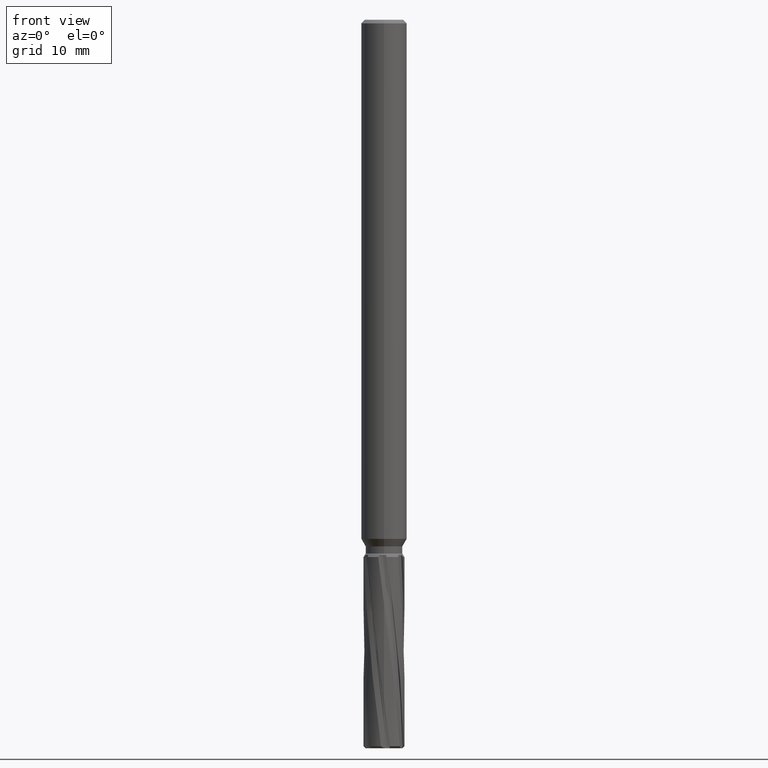
[diagram: clean part render]
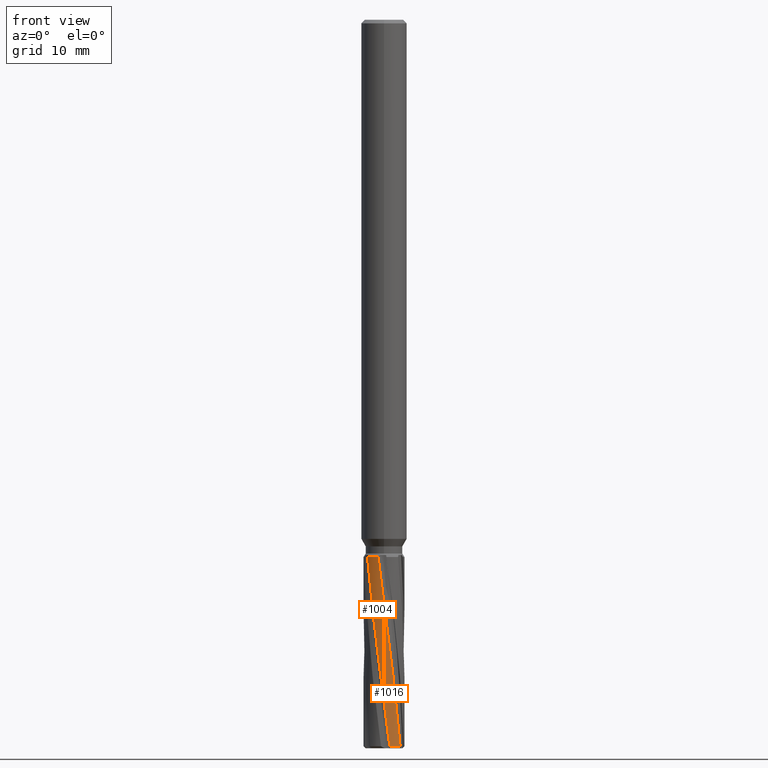
[diagram: same view with one multi-face feature highlighted, each face labeled with its STEP entity id]
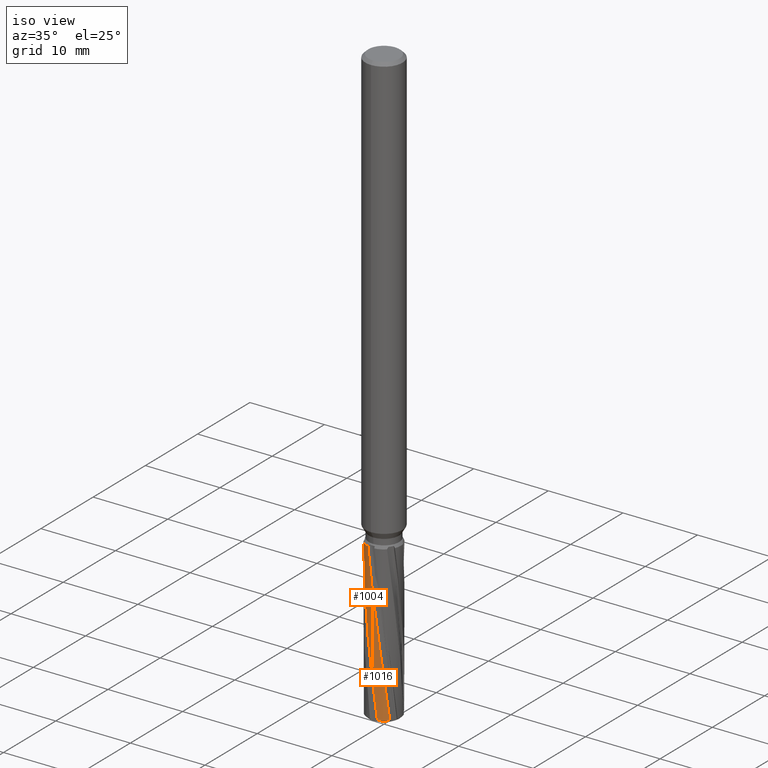
[diagram: same view with one multi-face feature highlighted, each face labeled with its STEP entity id]
A machine part, front view. The highlighted faces form ONE feature: a constant-radius fillet chain: 2 tangent blend faces with common blend radius 2.25 mm. The faces share edges in the B-rep.
A second angle (iso view) of the same feature is appended — it is thin or edge-on in the first view.
Their STEP definitions:
[1] entity #1016 (Cylinder):
#756=EDGE_CURVE('',#1688,#1414,#2015,.T.);
#806=EDGE_CURVE('',#1688,#1286,#2068,.T.);
#1016=ADVANCED_FACE('',(#2297),#2298,.T.);
#1176=VERTEX_POINT('',#2474);
#1212=EDGE_CURVE('',#1176,#1286,#2512,.T.);
#1286=VERTEX_POINT('',#2590);
#1414=VERTEX_POINT('',#2733);
#1688=VERTEX_POINT('',#3031);
#1702=EDGE_CURVE('',#1176,#1414,#3045,.T.);
#2015=LINE('',#4033,#4034);
#2068=B_SPLINE_CURVE_WITH_KNOTS('',3,(#4379,#4380,#4381,#4382,#4383,#4384,#4385,#4386,#4387,#4388,#4389,#4390,#4391,#4392,#4393,#4394,#4395,#4396),.UNSPECIFIED.,.F.,.F.,(4,2,2,2,2,2,2,2,4),(0.0,2.24763169912315,3.80169949927109,7.09311999092738,9.53967199945515,10.439282868356,13.5772195643846,15.133595222654,16.6910960603175),.UNSPECIFIED.);
#2297=FACE_OUTER_BOUND('',#5605,.T.);
#2298=CYLINDRICAL_SURFACE('',#5606,2.25);
#2474=CARTESIAN_POINT('',(1.76215847172596,-1.39903449583076,-79.775));
#2512=CIRCLE('',#7250,2.25);
#2590=CARTESIAN_POINT('',(0.63356610494079,-2.1589566903183,-79.775));
#2733=CARTESIAN_POINT('',(-1.776481943039E-011,-2.25,-64.1253749104153));
#3031=CARTESIAN_POINT('',(1.49676559848736E-015,-2.25,-74.8179904956601));
#3045=B_SPLINE_CURVE_WITH_KNOTS('',3,(#10328,#10329,#10330,#10331,#10332,#10333,#10334,#10335,#10336,#10337,#10338,#10339,#10340,#10341),.UNSPECIFIED.,.F.,.F.,(4,2,2,2,2,2,4),(0.0,2.61756637331922,11.8450244365393,16.4488721192636,17.4190607651211,20.8717720326524,21.5184970073441),.UNSPECIFIED.);
#4033=CARTESIAN_POINT('',(2.73484786643087E-016,-2.25,-69.3875));
#4034=VECTOR('',#12084,1.0);
#4379=CARTESIAN_POINT('',(-1.80198626379995,-1.34734758138956,-59.0));
#4380=CARTESIAN_POINT('',(-1.7223864139564,-1.45380699691074,-59.7373240329182));
#4381=CARTESIAN_POINT('',(-1.64320288411039,-1.54011485096043,-60.4781928115557));
#4382=CARTESIAN_POINT('',(-1.52491519418682,-1.65581052920191,-61.7520497884787));
#4383=CARTESIAN_POINT('',(-1.48549662201164,-1.69194601375596,-62.2296805492722));
#4384=CARTESIAN_POINT('',(-1.28497578799503,-1.85531815318653,-64.3341070576125));
#4385=CARTESIAN_POINT('',(-1.13327720065982,-1.95259115653192,-65.7080419528797));
#4386=CARTESIAN_POINT('',(-0.841110902451641,-2.09142419115177,-68.1730305586626));
#4387=CARTESIAN_POINT('',(-0.712264632816037,-2.13870278340979,-69.2172493664229));
#4388=CARTESIAN_POINT('',(-0.530722112822499,-2.18709521299927,-70.6774908700484));
#4389=CARTESIAN_POINT('',(-0.481154579938787,-2.19855314102949,-71.0727820097248));
#4390=CARTESIAN_POINT('',(-0.25457355307588,-2.24273973438403,-72.8605661284557));
#4391=CARTESIAN_POINT('',(-0.0750828251081753,-2.25588051311412,-74.2336125516319));
#4392=CARTESIAN_POINT('',(0.192801965863016,-2.24348669327978,-76.3123076100119));
#4393=CARTESIAN_POINT('',(0.281724475932341,-2.23409551936254,-77.0069988834614));
#4394=CARTESIAN_POINT('',(0.458802245926535,-2.20455519661263,-78.3916751492768));
#4395=CARTESIAN_POINT('',(0.546741437733963,-2.18443620385449,-79.0825667739723));
#4396=CARTESIAN_POINT('',(0.633566104940789,-2.1589566903183,-79.775));
#5605=EDGE_LOOP('',(#12356,#12357,#12358,#12359));
#5606=AXIS2_PLACEMENT_3D('',#12360,#12361,#12362);
#7250=AXIS2_PLACEMENT_3D('',#12543,#12544,#12545);
#10328=CARTESIAN_POINT('',(1.76215847172596,-1.39903449583076,-79.775));
#10329=CARTESIAN_POINT('',(1.69272804625978,-1.48648581514803,-78.9096523586407));
#10330=CARTESIAN_POINT('',(1.61685295546553,-1.56868785918504,-78.0431285386583));
#10331=CARTESIAN_POINT('',(1.24704263359295,-1.91380821832901,-74.1282874598519));
#10332=CARTESIAN_POINT('',(0.893768164591701,-2.1018115908543,-71.1689946091438));
#10333=CARTESIAN_POINT('',(0.321083568923904,-2.23555900176803,-66.6093617231515));
#10334=CARTESIAN_POINT('',(0.124644657571047,-2.25525545795429,-65.0684371645902));
#10335=CARTESIAN_POINT('',(-0.114982519580629,-2.24744754091968,-63.2504753980536));
#10336=CARTESIAN_POINT('',(-0.15709403390931,-2.24491390326137,-62.9335808220067));
#10337=CARTESIAN_POINT('',(-0.350651453115456,-2.22767942524011,-61.4915118098011));
#10338=CARTESIAN_POINT('',(-0.474484506640042,-2.20229219218437,-60.6309495751246));
#10339=CARTESIAN_POINT('',(-0.603845269154401,-2.16756024033936,-59.39132297074));
#10340=CARTESIAN_POINT('',(-0.623055924422064,-2.16209395181199,-59.1957895441396));
#10341=CARTESIAN_POINT('',(-0.640961904264667,-2.15677255112388,-59.0));
#12084=DIRECTION('',(-0.0,-0.0,1.0));
#12356=ORIENTED_EDGE('',*,*,#756,.F.);
#12357=ORIENTED_EDGE('',*,*,#806,.T.);
#12358=ORIENTED_EDGE('',*,*,#1212,.F.);
#12359=ORIENTED_EDGE('',*,*,#1702,.T.);
#12360=CARTESIAN_POINT('',(0.0,0.0,-69.3875));
#12361=DIRECTION('',(-0.0,-0.0,1.0));
#12362=DIRECTION('',(0.0,1.0,0.0));
#12543=CARTESIAN_POINT('',(0.0,0.0,-79.775));
#12544=DIRECTION('',(0.0,0.0,-1.0));
#12545=DIRECTION('',(0.0,1.0,0.0));
[2] entity #1004 (Cylinder):
#756=EDGE_CURVE('',#1688,#1414,#2015,.T.);
#1004=ADVANCED_FACE('',(#2283),#2284,.T.);
#1048=VERTEX_POINT('',#2331);
#1058=EDGE_CURVE('',#1414,#1048,#2342,.T.);
#1122=EDGE_CURVE('',#1048,#1612,#2416,.T.);
#1414=VERTEX_POINT('',#2733);
#1612=VERTEX_POINT('',#2948);
#1636=EDGE_CURVE('',#1612,#1688,#2976,.T.);
#1688=VERTEX_POINT('',#3031);
#2015=LINE('',#4033,#4034);
#2283=FACE_OUTER_BOUND('',#5590,.T.);
#2284=CYLINDRICAL_SURFACE('',#5591,2.25);
#2331=CARTESIAN_POINT('',(-0.640961904264664,-2.15677255112388,-59.0));
#2342=B_SPLINE_CURVE_WITH_KNOTS('',3,(#5990,#5991,#5992,#5993,#5994,#5995,#5996,#5997,#5998,#5999,#6000,#6001,#6002,#6003),.UNSPECIFIED.,.F.,.F.,(4,2,2,2,2,2,4),(0.0,2.61756637331922,11.8450244365393,16.4488721192636,17.4190607651211,20.8717720326524,21.5184970073441),.UNSPECIFIED.);
#2416=CIRCLE('',#6755,2.25);
#2733=CARTESIAN_POINT('',(-1.776481943039E-011,-2.25,-64.1253749104153));
#2948=CARTESIAN_POINT('',(-1.80198626379995,-1.34734758138956,-59.0));
#2976=B_SPLINE_CURVE_WITH_KNOTS('',3,(#9936,#9937,#9938,#9939,#9940,#9941,#9942,#9943,#9944,#9945,#9946,#9947,#9948,#9949,#9950,#9951,#9952,#9953),.UNSPECIFIED.,.F.,.F.,(4,2,2,2,2,2,2,2,4),(0.0,2.24763169912315,3.80169949927109,7.09311999092738,9.53967199945515,10.439282868356,13.5772195643846,15.133595222654,16.6910960603175),.UNSPECIFIED.);
#3031=CARTESIAN_POINT('',(1.49676559848736E-015,-2.25,-74.8179904956601));
#4033=CARTESIAN_POINT('',(2.73484786643087E-016,-2.25,-69.3875));
#4034=VECTOR('',#12084,1.0);
#5590=EDGE_LOOP('',(#12336,#12337,#12338,#12339));
#5591=AXIS2_PLACEMENT_3D('',#12340,#12341,#12342);
#5990=CARTESIAN_POINT('',(1.76215847172596,-1.39903449583076,-79.775));
#5991=CARTESIAN_POINT('',(1.69272804625978,-1.48648581514803,-78.9096523586407));
#5992=CARTESIAN_POINT('',(1.61685295546553,-1.56868785918504,-78.0431285386583));
#5993=CARTESIAN_POINT('',(1.24704263359295,-1.91380821832901,-74.1282874598519));
#5994=CARTESIAN_POINT('',(0.893768164591701,-2.1018115908543,-71.1689946091438));
#5995=CARTESIAN_POINT('',(0.321083568923904,-2.23555900176803,-66.6093617231515));
#5996=CARTESIAN_POINT('',(0.124644657571047,-2.25525545795429,-65.0684371645902));
#5997=CARTESIAN_POINT('',(-0.114982519580629,-2.24744754091968,-63.2504753980536));
#5998=CARTESIAN_POINT('',(-0.15709403390931,-2.24491390326137,-62.9335808220067));
#5999=CARTESIAN_POINT('',(-0.350651453115456,-2.22767942524011,-61.4915118098011));
#6000=CARTESIAN_POINT('',(-0.474484506640042,-2.20229219218437,-60.6309495751246));
#6001=CARTESIAN_POINT('',(-0.603845269154401,-2.16756024033936,-59.39132297074));
#6002=CARTESIAN_POINT('',(-0.623055924422064,-2.16209395181199,-59.1957895441396));
#6003=CARTESIAN_POINT('',(-0.640961904264667,-2.15677255112388,-59.0));
#6755=AXIS2_PLACEMENT_3D('',#12472,#12473,#12474);
#9936=CARTESIAN_POINT('',(-1.80198626379995,-1.34734758138956,-59.0));
#9937=CARTESIAN_POINT('',(-1.7223864139564,-1.45380699691074,-59.7373240329182));
#9938=CARTESIAN_POINT('',(-1.64320288411039,-1.54011485096043,-60.4781928115557));
#9939=CARTESIAN_POINT('',(-1.52491519418682,-1.65581052920191,-61.7520497884787));
#9940=CARTESIAN_POINT('',(-1.48549662201164,-1.69194601375596,-62.2296805492722));
#9941=CARTESIAN_POINT('',(-1.28497578799503,-1.85531815318653,-64.3341070576125));
#9942=CARTESIAN_POINT('',(-1.13327720065982,-1.95259115653192,-65.7080419528797));
#9943=CARTESIAN_POINT('',(-0.841110902451641,-2.09142419115177,-68.1730305586626));
#9944=CARTESIAN_POINT('',(-0.712264632816037,-2.13870278340979,-69.2172493664229));
#9945=CARTESIAN_POINT('',(-0.530722112822499,-2.18709521299927,-70.6774908700484));
#9946=CARTESIAN_POINT('',(-0.481154579938787,-2.19855314102949,-71.0727820097248));
#9947=CARTESIAN_POINT('',(-0.25457355307588,-2.24273973438403,-72.8605661284557));
#9948=CARTESIAN_POINT('',(-0.0750828251081753,-2.25588051311412,-74.2336125516319));
#9949=CARTESIAN_POINT('',(0.192801965863016,-2.24348669327978,-76.3123076100119));
#9950=CARTESIAN_POINT('',(0.281724475932341,-2.23409551936254,-77.0069988834614));
#9951=CARTESIAN_POINT('',(0.458802245926535,-2.20455519661263,-78.3916751492768));
#9952=CARTESIAN_POINT('',(0.546741437733963,-2.18443620385449,-79.0825667739723));
#9953=CARTESIAN_POINT('',(0.633566104940789,-2.1589566903183,-79.775));
#12084=DIRECTION('',(-0.0,-0.0,1.0));
#12336=ORIENTED_EDGE('',*,*,#756,.T.);
#12337=ORIENTED_EDGE('',*,*,#1058,.T.);
#12338=ORIENTED_EDGE('',*,*,#1122,.T.);
#12339=ORIENTED_EDGE('',*,*,#1636,.T.);
#12340=CARTESIAN_POINT('',(0.0,0.0,-69.3875));
#12341=DIRECTION('',(-0.0,-0.0,1.0));
#12342=DIRECTION('',(0.0,1.0,0.0));
#12472=CARTESIAN_POINT('',(0.0,0.0,-59.0));
#12473=DIRECTION('',(0.0,0.0,-1.0));
#12474=DIRECTION('',(0.0,1.0,0.0));